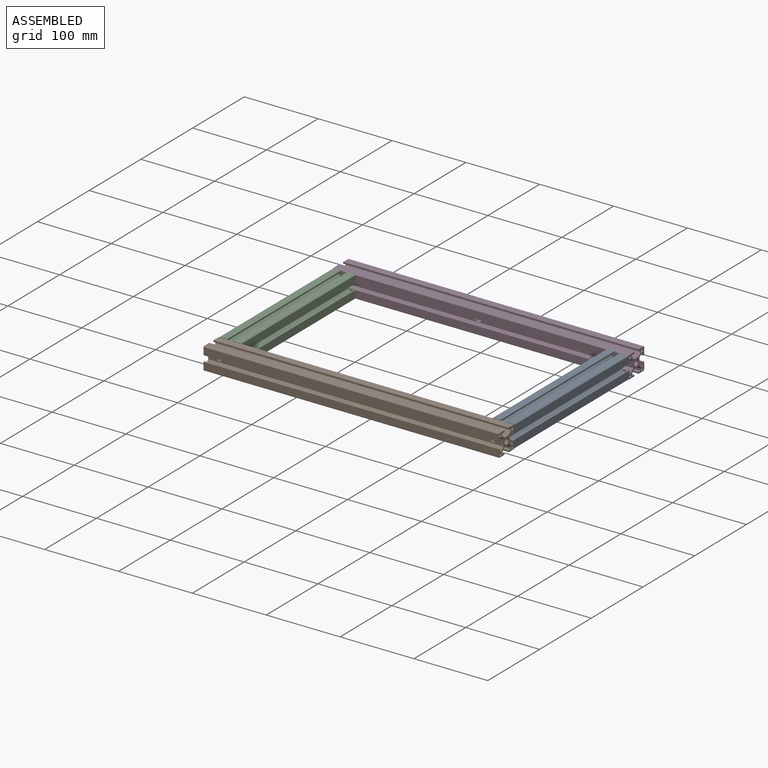
[diagram: assembled view]
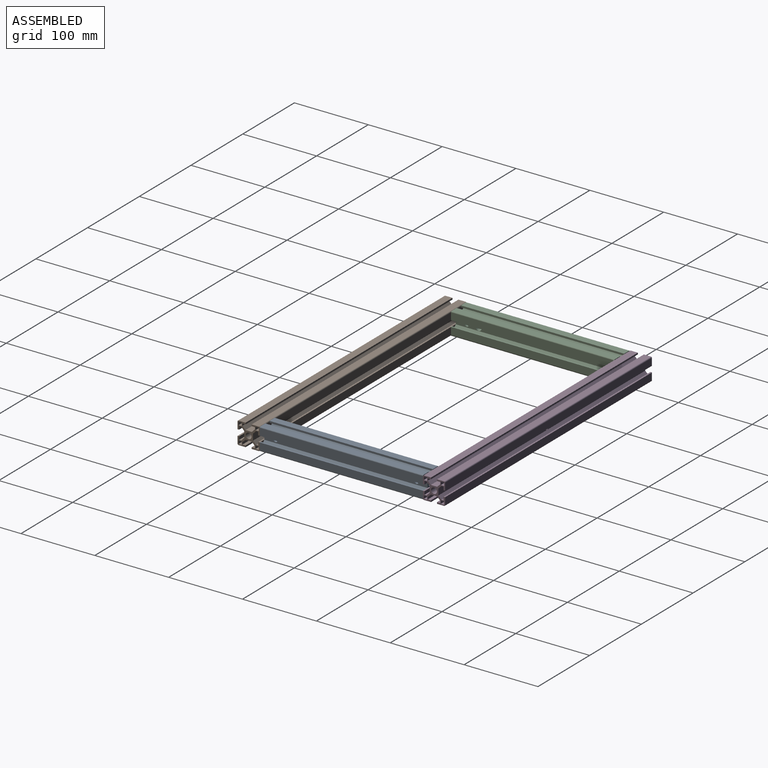
[diagram: assembled view, second angle]
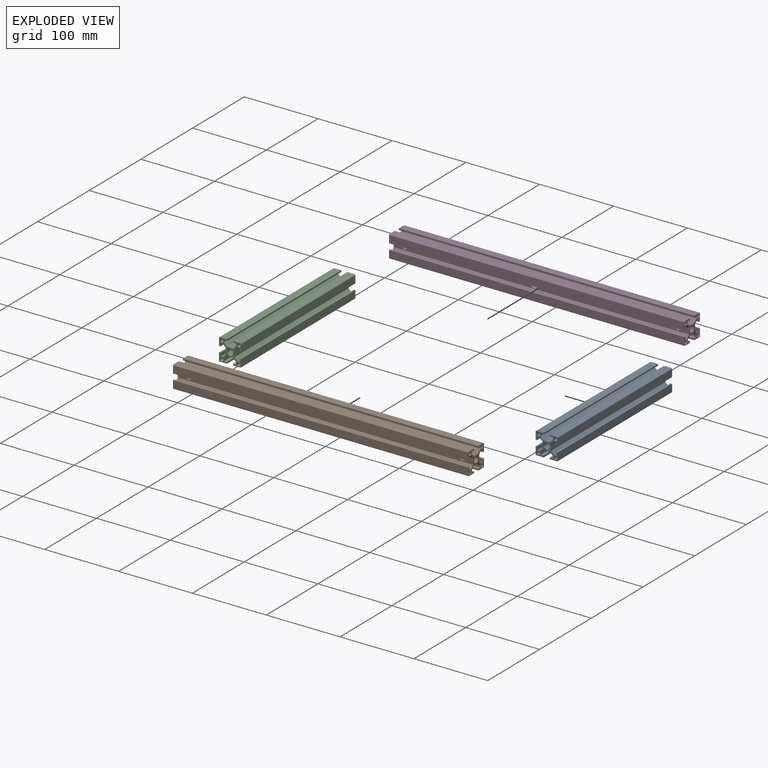
[diagram: exploded view]
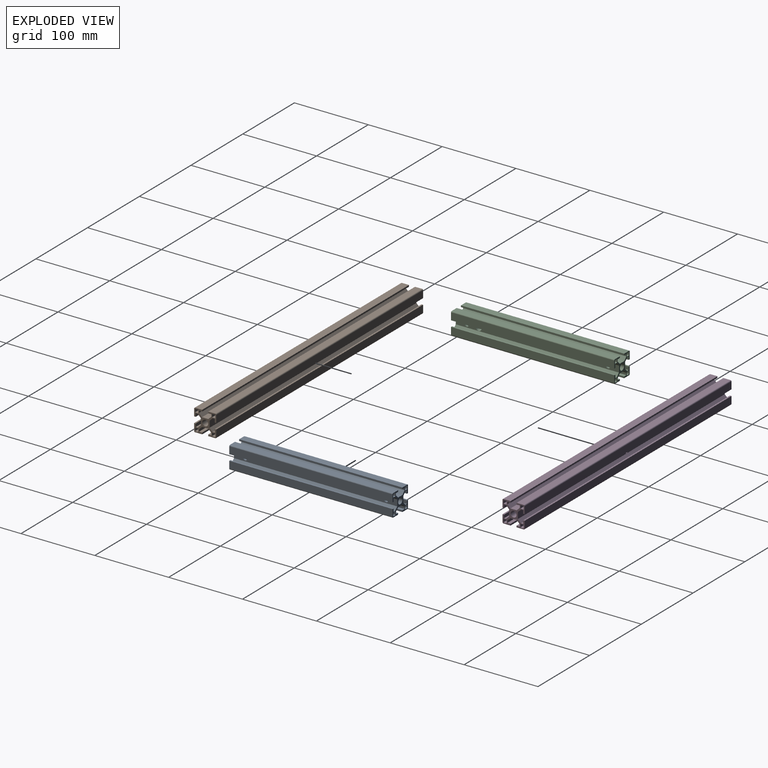
[diagram: exploded view, second angle]
ASSEMBLY  parts=4 mates=9
PART A: 96 faces, bbox 30x30x221 mm
  f0: cylinder r=4mm len=14mm, axis (0,0,-1), area 316.6mm2, adj f20,f89,f91,f94,f95
  f1: cylinder r=4mm len=174mm, axis (0,0,-1), area 4273.8mm2, adj f86,f87,f88,f90,f92,f93
  f2: cylinder r=4mm len=15mm, axis (0,0,-1), area 277.7mm2, adj f88,f89,f90,f91,f94,f95
  f3: plane 221x3.3mm, normal (0,-1,0), area 729.3mm2, adj f19,f20,f68,f82
  f4: plane 221x3.3mm, normal (-1,0,0), area 729.3mm2, adj f19,f20,f82,f83
  f5: cylinder r=4mm len=14mm, axis (0,0,-1), area 668mm2, adj f19,f86,f87,f92,f93
  f6: plane 221x3.3mm, normal (1,0,0), area 729.3mm2, adj f19,f20,f84,f85
  f7: plane 221x3.3mm, normal (0,-1,0), area 729.3mm2, adj f19,f20,f69,f85
  f8: plane 221x9.64mm, normal (0,1,0), area 2129.3mm2, adj f9,f19,f20,f73
  f9: plane 221x2.1mm, normal (-1,0,0), area 464.1mm2, adj f8,f10,f19,f20
  f10: plane 221x4.34mm, normal (0,-1,0), area 958mm2, adj f9,f11,f19,f20
  f11: plane 221x2.85mm, normal (-1,0,0), area 630.4mm2, adj f10,f12,f19,f20
  f12: plane 221x4.13mm, normal (-0.71,0.71,0), area 1290mm2, adj f11,f13,f19,f20
  f13: plane 221x8.55mm, normal (0,1,0), area 1781.6mm2, adj f12,f14,f19,f20,f87,f90,f91
  f14: plane 221x4.13mm, normal (0.71,0.71,0), area 1290mm2, adj f13,f15,f19,f20
  f15: plane 221x2.85mm, normal (1,0,0), area 630.4mm2, adj f14,f16,f19,f20
  f16: plane 221x4.34mm, normal (0,-1,0), area 958mm2, adj f15,f17,f19,f20
  f17: plane 221x2.1mm, normal (1,0,0), area 464.1mm2, adj f16,f18,f19,f20
  f18: plane 221x9.64mm, normal (0,1,0), area 2129.3mm2, adj f17,f19,f20,f72
  f19: plane 30x30mm, normal (0,0,1), area 255.7mm2, adj f3,f4,f5,f6,f7,f8,f9,f10
  f20: plane 30x30mm, normal (0,0,-1), area 306mm2, adj f0,f3,f4,f6,f7,f8,f9,f10
  f21: plane 221x3.3mm, normal (-1,0,0), area 729.3mm2, adj f19,f20,f67,f75
  f22: plane 221x3.3mm, normal (0,-1,0), area 729.3mm2, adj f19,f20,f75,f76
  f23: plane 221x3.3mm, normal (0,1,0), area 729.3mm2, adj f19,f20,f81,f84
  f24: plane 221x3.3mm, normal (-1,0,0), area 729.3mm2, adj f19,f20,f69,f81
  f25: plane 221x9.64mm, normal (1,0,0), area 2129.3mm2, adj f19,f20,f26,f73
  f26: plane 221x2.1mm, normal (0,-1,0), area 464.1mm2, adj f19,f20,f25,f27
  f27: plane 221x4.34mm, normal (-1,0,0), area 958mm2, adj f19,f20,f26,f28
  f28: plane 221x2.85mm, normal (0,-1,0), area 630.4mm2, adj f19,f20,f27,f29
  f29: plane 221x4.13mm, normal (0.71,-0.71,0), area 1290mm2, adj f19,f20,f28,f30
  f30: plane 221x8.55mm, normal (1,0,0), area 1831.9mm2, adj f19,f20,f29,f31,f93,f95
  f31: plane 221x4.13mm, normal (0.71,0.71,0), area 1290mm2, adj f19,f20,f30,f32
  f32: plane 221x2.85mm, normal (0,1,0), area 630.4mm2, adj f19,f20,f31,f33
  f33: plane 221x4.34mm, normal (-1,0,0), area 958mm2, adj f19,f20,f32,f34
  f34: plane 221x2.1mm, normal (0,1,0), area 464.1mm2, adj f19,f20,f33,f35
  f35: plane 221x9.64mm, normal (1,0,0), area 2129.3mm2, adj f19,f20,f34,f71
  f36: plane 221x3.3mm, normal (1,0,0), area 729.3mm2, adj f19,f20,f68,f78
  f37: plane 221x3.3mm, normal (0,1,0), area 729.3mm2, adj f19,f20,f78,f83
  f38: plane 221x3.3mm, normal (0,-1,0), area 729.3mm2, adj f19,f20,f79,f80
  f39: plane 221x3.3mm, normal (1,0,0), area 729.3mm2, adj f19,f20,f66,f80
  f40: plane 221x9.64mm, normal (-1,0,0), area 2129.3mm2, adj f19,f20,f41,f70
  f41: plane 221x2.1mm, normal (0,1,0), area 464.1mm2, adj f19,f20,f40,f42
  f42: plane 221x4.34mm, normal (1,0,0), area 958mm2, adj f19,f20,f41,f43
  f43: plane 221x2.85mm, normal (0,1,0), area 630.4mm2, adj f19,f20,f42,f44
  f44: plane 221x4.13mm, normal (-0.71,0.71,0), area 1290mm2, adj f19,f20,f43,f45
  f45: plane 221x8.55mm, normal (-1,0,0), area 1831.9mm2, adj f19,f20,f44,f46,f92,f94
  f46: plane 221x4.13mm, normal (-0.71,-0.71,0), area 1290mm2, adj f19,f20,f45,f47
  f47: plane 221x2.85mm, normal (0,-1,0), area 630.4mm2, adj f19,f20,f46,f48
  f48: plane 221x4.34mm, normal (1,0,0), area 958mm2, adj f19,f20,f47,f49
  f49: plane 221x2.1mm, normal (0,-1,0), area 464.1mm2, adj f19,f20,f48,f50
  f50: plane 221x9.64mm, normal (-1,0,0), area 2129.3mm2, adj f19,f20,f49,f72
  f51: plane 221x3.3mm, normal (0,1,0), area 729.3mm2, adj f19,f20,f67,f74
  f52: plane 221x3.3mm, normal (1,0,0), area 729.3mm2, adj f19,f20,f74,f76
  f53: plane 221x3.3mm, normal (-1,0,0), area 729.3mm2, adj f19,f20,f77,f79
  f54: plane 221x3.3mm, normal (0,1,0), area 729.3mm2, adj f19,f20,f66,f77
  f55: plane 221x9.64mm, normal (0,-1,0), area 2129.3mm2, adj f19,f20,f56,f70
  f56: plane 221x2.1mm, normal (1,0,0), area 464.1mm2, adj f19,f20,f55,f57
  f57: plane 221x4.34mm, normal (0,1,0), area 958mm2, adj f19,f20,f56,f58
  f58: plane 221x2.85mm, normal (1,0,0), area 630.4mm2, adj f19,f20,f57,f59
  f59: plane 221x4.13mm, normal (0.71,-0.71,0), area 1290mm2, adj f19,f20,f58,f60
  f60: plane 221x8.55mm, normal (0,-1,0), area 1781.6mm2, adj f19,f20,f59,f61,f86,f88,f89
  f61: plane 221x4.13mm, normal (-0.71,-0.71,0), area 1290mm2, adj f19,f20,f60,f62
  f62: plane 221x2.85mm, normal (-1,0,0), area 630.4mm2, adj f19,f20,f61,f63
  f63: plane 221x4.34mm, normal (0,1,0), area 958mm2, adj f19,f20,f62,f64
  f64: plane 221x2.1mm, normal (-1,0,0), area 464.1mm2, adj f19,f20,f63,f65
  f65: plane 221x9.64mm, normal (0,-1,0), area 2129.3mm2, adj f19,f20,f64,f71
  f66: cylinder r=0.5mm len=221mm, axis (0,0,1), area 173.6mm2, adj f19,f20,f39,f54
  f67: cylinder r=0.5mm len=221mm, axis (0,0,1), area 173.6mm2, adj f19,f20,f21,f51
  f68: cylinder r=0.5mm len=221mm, axis (0,0,1), area 173.6mm2, adj f3,f19,f20,f36
  f69: cylinder r=0.5mm len=221mm, axis (0,0,1), area 173.6mm2, adj f7,f19,f20,f24
  f70: cylinder r=1.3mm len=221mm, axis (0,0,-1), area 451.3mm2, adj f19,f20,f40,f55
  f71: cylinder r=1.3mm len=221mm, axis (0,0,-1), area 451.3mm2, adj f19,f20,f35,f65
  f72: cylinder r=1.3mm len=221mm, axis (0,0,-1), area 451.3mm2, adj f18,f19,f20,f50
  f73: cylinder r=1.3mm len=221mm, axis (0,0,-1), area 451.3mm2, adj f8,f19,f20,f25
  f74: cylinder r=0.5mm len=221mm, axis (0,0,1), area 173.6mm2, adj f19,f20,f51,f52
  f75: cylinder r=0.5mm len=221mm, axis (0,0,1), area 173.6mm2, adj f19,f20,f21,f22
  f76: cylinder r=0.5mm len=221mm, axis (0,0,1), area 173.6mm2, adj f19,f20,f22,f52
  f77: cylinder r=0.5mm len=221mm, axis (0,0,1), area 173.6mm2, adj f19,f20,f53,f54
  f78: cylinder r=0.5mm len=221mm, axis (0,0,1), area 173.6mm2, adj f19,f20,f36,f37
  f79: cylinder r=0.5mm len=221mm, axis (0,0,1), area 173.6mm2, adj f19,f20,f38,f53
  f80: cylinder r=0.5mm len=221mm, axis (0,0,1), area 173.6mm2, adj f19,f20,f38,f39
  f81: cylinder r=0.5mm len=221mm, axis (0,0,1), area 173.6mm2, adj f19,f20,f23,f24
  f82: cylinder r=0.5mm len=221mm, axis (0,0,1), area 173.6mm2, adj f3,f4,f19,f20
  f83: cylinder r=0.5mm len=221mm, axis (0,0,1), area 173.6mm2, adj f4,f19,f20,f37
  f84: cylinder r=0.5mm len=221mm, axis (0,0,1), area 173.6mm2, adj f6,f19,f20,f23
  f85: cylinder r=0.5mm len=221mm, axis (0,0,1), area 173.6mm2, adj f6,f7,f19,f20
  f86: cylinder r=3mm len=6mm, axis (0,-1,0), area 47.4mm2, adj f1,f5,f60,f92,f93
  f87: cylinder r=3mm len=6mm, axis (0,-1,0), area 47.4mm2, adj f1,f5,f13,f92,f93
  f88: cylinder r=4mm len=8mm, axis (0,-1,0), area 84.8mm2, adj f1,f2,f60
  f89: cylinder r=3mm len=6mm, axis (0,-1,0), area 47.4mm2, adj f0,f2,f60,f94,f95
  f90: cylinder r=4mm len=8mm, axis (0,-1,0), area 84.8mm2, adj f1,f2,f13
  f91: cylinder r=3mm len=6mm, axis (0,-1,0), area 47.4mm2, adj f0,f2,f13,f94,f95
  f92: cylinder r=3mm len=6mm, axis (1,0,0), area 47.3mm2, adj f1,f5,f45,f86,f87
  f93: cylinder r=3mm len=6mm, axis (1,0,0), area 47.5mm2, adj f1,f5,f30,f86,f87
  f94: cylinder r=3mm len=6mm, axis (1,0,0), area 47.3mm2, adj f0,f2,f45,f89,f91
  f95: cylinder r=3mm len=6mm, axis (1,0,0), area 47.5mm2, adj f0,f2,f30,f89,f91
PART B: 96 faces, bbox 30x30x400 mm
  f0: cylinder r=4mm len=14mm, axis (0,0,-1), area 316.6mm2, adj f20,f89,f91,f94,f95
  f1: cylinder r=4mm len=174mm, axis (0,0,-1), area 4273.8mm2, adj f86,f87,f88,f90,f92,f93
  f2: cylinder r=4mm len=194mm, axis (0,0,-1), area 4776.5mm2, adj f88,f89,f90,f91,f94,f95
  f3: plane 400x3.3mm, normal (0,-1,0), area 1320mm2, adj f19,f20,f68,f82
  f4: plane 400x3.3mm, normal (-1,0,0), area 1320mm2, adj f19,f20,f82,f83
  f5: cylinder r=4mm len=14mm, axis (0,0,-1), area 668mm2, adj f19,f86,f87,f92,f93
  f6: plane 400x3.3mm, normal (1,0,0), area 1320mm2, adj f19,f20,f84,f85
  f7: plane 400x3.3mm, normal (0,-1,0), area 1320mm2, adj f19,f20,f69,f85
  f8: plane 400x9.64mm, normal (0,1,0), area 3854mm2, adj f9,f19,f20,f73
  f9: plane 400x2.1mm, normal (-1,0,0), area 840mm2, adj f8,f10,f19,f20
  f10: plane 400x4.34mm, normal (0,-1,0), area 1734mm2, adj f9,f11,f19,f20
  f11: plane 400x2.85mm, normal (-1,0,0), area 1141mm2, adj f10,f12,f19,f20
  f12: plane 400x4.13mm, normal (-0.71,0.71,0), area 2334.9mm2, adj f11,f13,f19,f20
  f13: plane 400x8.55mm, normal (0,1,0), area 3311.1mm2, adj f12,f14,f19,f20,f87,f90,f91
  f14: plane 400x4.13mm, normal (0.71,0.71,0), area 2334.9mm2, adj f13,f15,f19,f20
  f15: plane 400x2.85mm, normal (1,0,0), area 1141mm2, adj f14,f16,f19,f20
  f16: plane 400x4.34mm, normal (0,-1,0), area 1734mm2, adj f15,f17,f19,f20
  f17: plane 400x2.1mm, normal (1,0,0), area 840mm2, adj f16,f18,f19,f20
  f18: plane 400x9.64mm, normal (0,1,0), area 3854mm2, adj f17,f19,f20,f72
  f19: plane 30x30mm, normal (0,0,1), area 255.7mm2, adj f3,f4,f5,f6,f7,f8,f9,f10
  f20: plane 30x30mm, normal (0,0,-1), area 306mm2, adj f0,f3,f4,f6,f7,f8,f9,f10
  f21: plane 400x3.3mm, normal (-1,0,0), area 1320mm2, adj f19,f20,f67,f75
  f22: plane 400x3.3mm, normal (0,-1,0), area 1320mm2, adj f19,f20,f75,f76
  f23: plane 400x3.3mm, normal (0,1,0), area 1320mm2, adj f19,f20,f81,f84
  f24: plane 400x3.3mm, normal (-1,0,0), area 1320mm2, adj f19,f20,f69,f81
  f25: plane 400x9.64mm, normal (1,0,0), area 3854mm2, adj f19,f20,f26,f73
  f26: plane 400x2.1mm, normal (0,-1,0), area 840mm2, adj f19,f20,f25,f27
  f27: plane 400x4.34mm, normal (-1,0,0), area 1734mm2, adj f19,f20,f26,f28
  f28: plane 400x2.85mm, normal (0,-1,0), area 1141mm2, adj f19,f20,f27,f29
  f29: plane 400x4.13mm, normal (0.71,-0.71,0), area 2334.9mm2, adj f19,f20,f28,f30
  f30: plane 400x8.55mm, normal (1,0,0), area 3361.4mm2, adj f19,f20,f29,f31,f93,f95
  f31: plane 400x4.13mm, normal (0.71,0.71,0), area 2334.9mm2, adj f19,f20,f30,f32
  f32: plane 400x2.85mm, normal (0,1,0), area 1141mm2, adj f19,f20,f31,f33
  f33: plane 400x4.34mm, normal (-1,0,0), area 1734mm2, adj f19,f20,f32,f34
  f34: plane 400x2.1mm, normal (0,1,0), area 840mm2, adj f19,f20,f33,f35
  f35: plane 400x9.64mm, normal (1,0,0), area 3854mm2, adj f19,f20,f34,f71
  f36: plane 400x3.3mm, normal (1,0,0), area 1320mm2, adj f19,f20,f68,f78
  f37: plane 400x3.3mm, normal (0,1,0), area 1320mm2, adj f19,f20,f78,f83
  f38: plane 400x3.3mm, normal (0,-1,0), area 1320mm2, adj f19,f20,f79,f80
  f39: plane 400x3.3mm, normal (1,0,0), area 1320mm2, adj f19,f20,f66,f80
  f40: plane 400x9.64mm, normal (-1,0,0), area 3854mm2, adj f19,f20,f41,f70
  f41: plane 400x2.1mm, normal (0,1,0), area 840mm2, adj f19,f20,f40,f42
  f42: plane 400x4.34mm, normal (1,0,0), area 1734mm2, adj f19,f20,f41,f43
  f43: plane 400x2.85mm, normal (0,1,0), area 1141mm2, adj f19,f20,f42,f44
  f44: plane 400x4.13mm, normal (-0.71,0.71,0), area 2334.9mm2, adj f19,f20,f43,f45
  f45: plane 400x8.55mm, normal (-1,0,0), area 3361.4mm2, adj f19,f20,f44,f46,f92,f94
  f46: plane 400x4.13mm, normal (-0.71,-0.71,0), area 2334.9mm2, adj f19,f20,f45,f47
  f47: plane 400x2.85mm, normal (0,-1,0), area 1141mm2, adj f19,f20,f46,f48
  f48: plane 400x4.34mm, normal (1,0,0), area 1734mm2, adj f19,f20,f47,f49
  f49: plane 400x2.1mm, normal (0,-1,0), area 840mm2, adj f19,f20,f48,f50
  f50: plane 400x9.64mm, normal (-1,0,0), area 3854mm2, adj f19,f20,f49,f72
  f51: plane 400x3.3mm, normal (0,1,0), area 1320mm2, adj f19,f20,f67,f74
  f52: plane 400x3.3mm, normal (1,0,0), area 1320mm2, adj f19,f20,f74,f76
  f53: plane 400x3.3mm, normal (-1,0,0), area 1320mm2, adj f19,f20,f77,f79
  f54: plane 400x3.3mm, normal (0,1,0), area 1320mm2, adj f19,f20,f66,f77
  f55: plane 400x9.64mm, normal (0,-1,0), area 3854mm2, adj f19,f20,f56,f70
  f56: plane 400x2.1mm, normal (1,0,0), area 840mm2, adj f19,f20,f55,f57
  f57: plane 400x4.34mm, normal (0,1,0), area 1734mm2, adj f19,f20,f56,f58
  f58: plane 400x2.85mm, normal (1,0,0), area 1141mm2, adj f19,f20,f57,f59
  f59: plane 400x4.13mm, normal (0.71,-0.71,0), area 2334.9mm2, adj f19,f20,f58,f60
  f60: plane 400x8.55mm, normal (0,-1,0), area 3311.1mm2, adj f19,f20,f59,f61,f86,f88,f89
  f61: plane 400x4.13mm, normal (-0.71,-0.71,0), area 2334.9mm2, adj f19,f20,f60,f62
  f62: plane 400x2.85mm, normal (-1,0,0), area 1141mm2, adj f19,f20,f61,f63
  f63: plane 400x4.34mm, normal (0,1,0), area 1734mm2, adj f19,f20,f62,f64
  f64: plane 400x2.1mm, normal (-1,0,0), area 840mm2, adj f19,f20,f63,f65
  f65: plane 400x9.64mm, normal (0,-1,0), area 3854mm2, adj f19,f20,f64,f71
  f66: cylinder r=0.5mm len=400mm, axis (0,0,1), area 314.2mm2, adj f19,f20,f39,f54
  f67: cylinder r=0.5mm len=400mm, axis (0,0,1), area 314.2mm2, adj f19,f20,f21,f51
  f68: cylinder r=0.5mm len=400mm, axis (0,0,1), area 314.2mm2, adj f3,f19,f20,f36
  f69: cylinder r=0.5mm len=400mm, axis (0,0,1), area 314.2mm2, adj f7,f19,f20,f24
  f70: cylinder r=1.3mm len=400mm, axis (0,0,-1), area 816.8mm2, adj f19,f20,f40,f55
  f71: cylinder r=1.3mm len=400mm, axis (0,0,-1), area 816.8mm2, adj f19,f20,f35,f65
  f72: cylinder r=1.3mm len=400mm, axis (0,0,-1), area 816.8mm2, adj f18,f19,f20,f50
  f73: cylinder r=1.3mm len=400mm, axis (0,0,-1), area 816.8mm2, adj f8,f19,f20,f25
  f74: cylinder r=0.5mm len=400mm, axis (0,0,1), area 314.2mm2, adj f19,f20,f51,f52
  f75: cylinder r=0.5mm len=400mm, axis (0,0,1), area 314.2mm2, adj f19,f20,f21,f22
  f76: cylinder r=0.5mm len=400mm, axis (0,0,1), area 314.2mm2, adj f19,f20,f22,f52
  f77: cylinder r=0.5mm len=400mm, axis (0,0,1), area 314.2mm2, adj f19,f20,f53,f54
  f78: cylinder r=0.5mm len=400mm, axis (0,0,1), area 314.2mm2, adj f19,f20,f36,f37
  f79: cylinder r=0.5mm len=400mm, axis (0,0,1), area 314.2mm2, adj f19,f20,f38,f53
  f80: cylinder r=0.5mm len=400mm, axis (0,0,1), area 314.2mm2, adj f19,f20,f38,f39
  f81: cylinder r=0.5mm len=400mm, axis (0,0,1), area 314.2mm2, adj f19,f20,f23,f24
  f82: cylinder r=0.5mm len=400mm, axis (0,0,1), area 314.2mm2, adj f3,f4,f19,f20
  f83: cylinder r=0.5mm len=400mm, axis (0,0,1), area 314.2mm2, adj f4,f19,f20,f37
  f84: cylinder r=0.5mm len=400mm, axis (0,0,1), area 314.2mm2, adj f6,f19,f20,f23
  f85: cylinder r=0.5mm len=400mm, axis (0,0,1), area 314.2mm2, adj f6,f7,f19,f20
  f86: cylinder r=3mm len=6mm, axis (0,-1,0), area 47.4mm2, adj f1,f5,f60,f92,f93
  f87: cylinder r=3mm len=6mm, axis (0,-1,0), area 47.4mm2, adj f1,f5,f13,f92,f93
  f88: cylinder r=4mm len=8mm, axis (0,-1,0), area 84.8mm2, adj f1,f2,f60
  f89: cylinder r=3mm len=6mm, axis (0,-1,0), area 47.4mm2, adj f0,f2,f60,f94,f95
  f90: cylinder r=4mm len=8mm, axis (0,-1,0), area 84.8mm2, adj f1,f2,f13
  f91: cylinder r=3mm len=6mm, axis (0,-1,0), area 47.4mm2, adj f0,f2,f13,f94,f95
  f92: cylinder r=3mm len=6mm, axis (1,0,0), area 47.3mm2, adj f1,f5,f45,f86,f87
  f93: cylinder r=3mm len=6mm, axis (1,0,0), area 47.5mm2, adj f1,f5,f30,f86,f87
  f94: cylinder r=3mm len=6mm, axis (1,0,0), area 47.3mm2, adj f0,f2,f45,f89,f91
  f95: cylinder r=3mm len=6mm, axis (1,0,0), area 47.5mm2, adj f0,f2,f30,f89,f91
PART C: same geometry as A
PART D: same geometry as B
PLACE A rot(axis=(1,0,0),90deg) t=(69.3,323.26,342.11)mm
PLACE B rot(axis=(0.58,0.58,0.58),120deg) t=(-315.7,87.26,342.11)mm
PLACE C rot(axis=(-0.58,-0.58,-0.58),120deg) t=(-300.7,102.26,342.11)mm
PLACE D rot(axis=(0,-1,0),90deg) t=(84.3,338.26,342.11)mm
MATE planar A.f0 <-> B.f25  axis (0,1,0) through (69.3,102.26,342.11)mm
MATE planar A.f65 <-> B.f55  axis (0,0,-1) through (78.18,102.26,327.11)mm
MATE planar A.f25 <-> B.f0  axis (1,0,0) through (84.3,102.26,355.81)mm
MATE planar D.f65 <-> C.f0  axis (0,-1,0) through (-315.7,323.26,355.81)mm
MATE planar A.f35 <-> D.f0  axis (1,0,0) through (84.3,212.76,333.23)mm
MATE planar D.f35 <-> C.f35  axis (0,0,1) through (-115.7,329.38,357.11)mm
MATE planar A.f0 <-> D.f55  axis (0,1,0) through (69.3,323.26,342.11)mm
MATE planar C.f65 <-> D.f0  axis (-1,0,0) through (-315.7,323.26,350.99)mm
MATE planar A.f8 <-> D.f35  axis (0,0,1) through (78.18,212.76,357.11)mm
